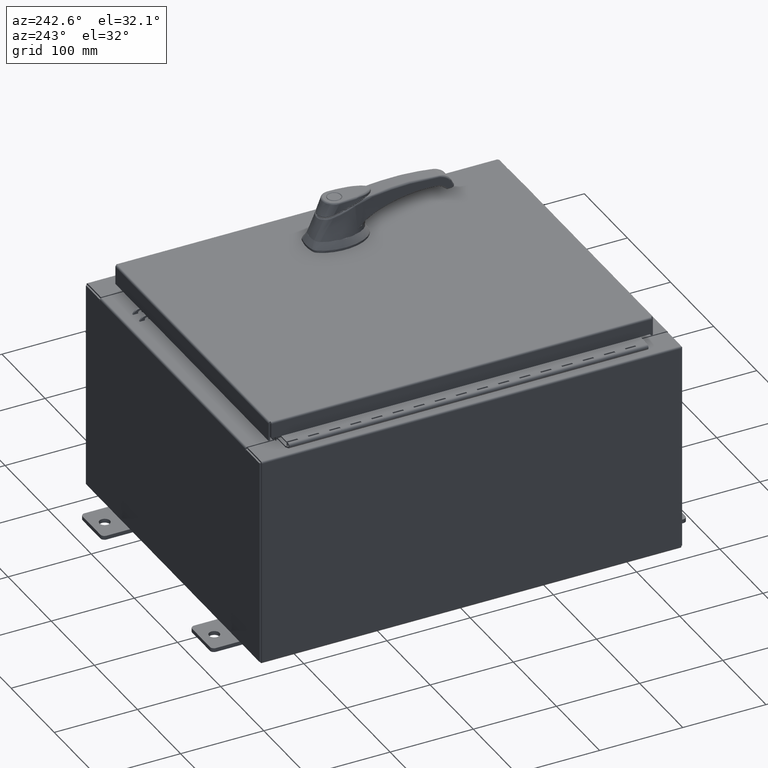
[diagram: clean part render]
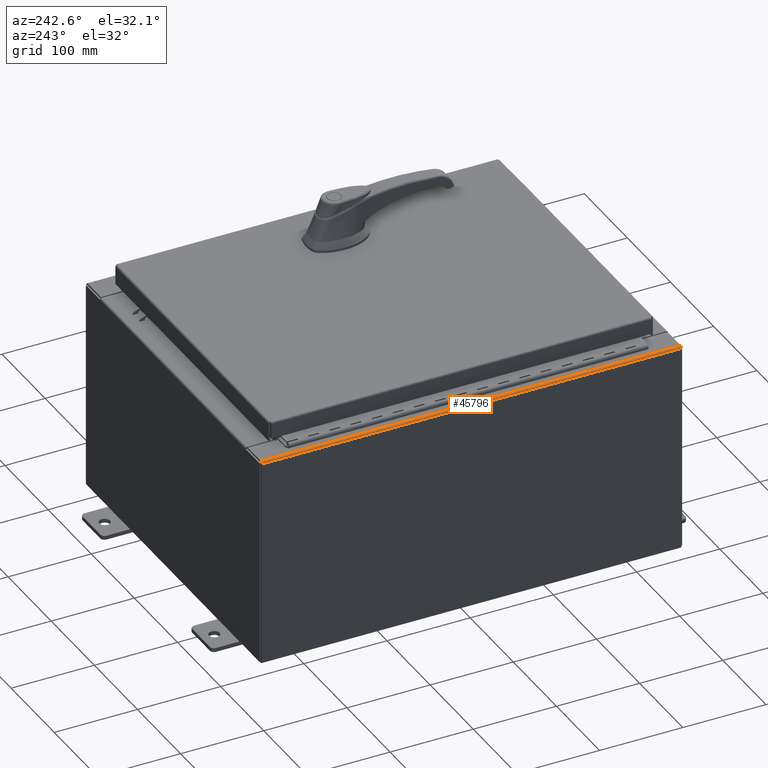
[diagram: same view with one face highlighted and labeled with its STEP entity id]
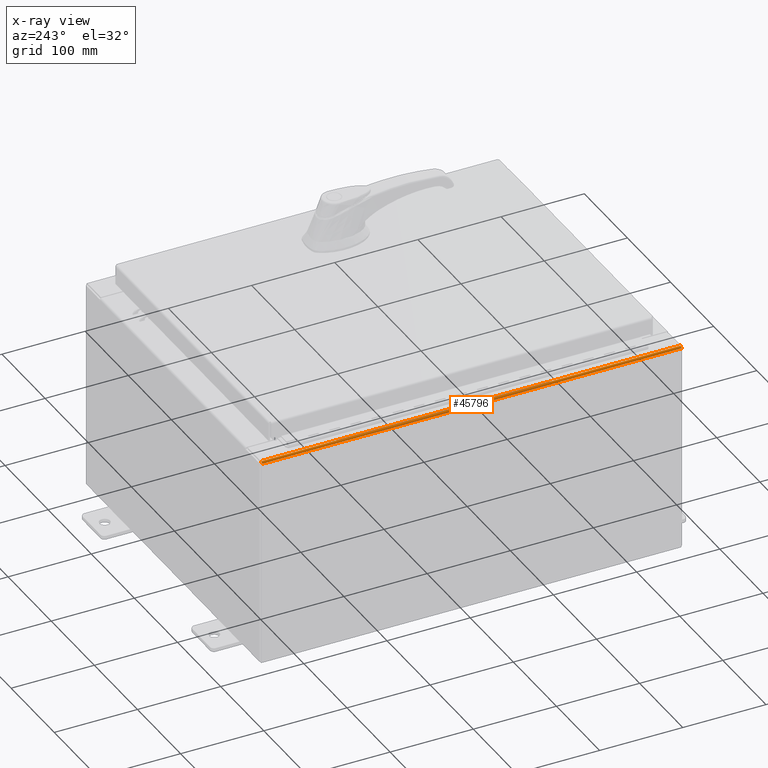
[diagram: x-ray of the same camera — body ghosted, the highlighted face saturated]
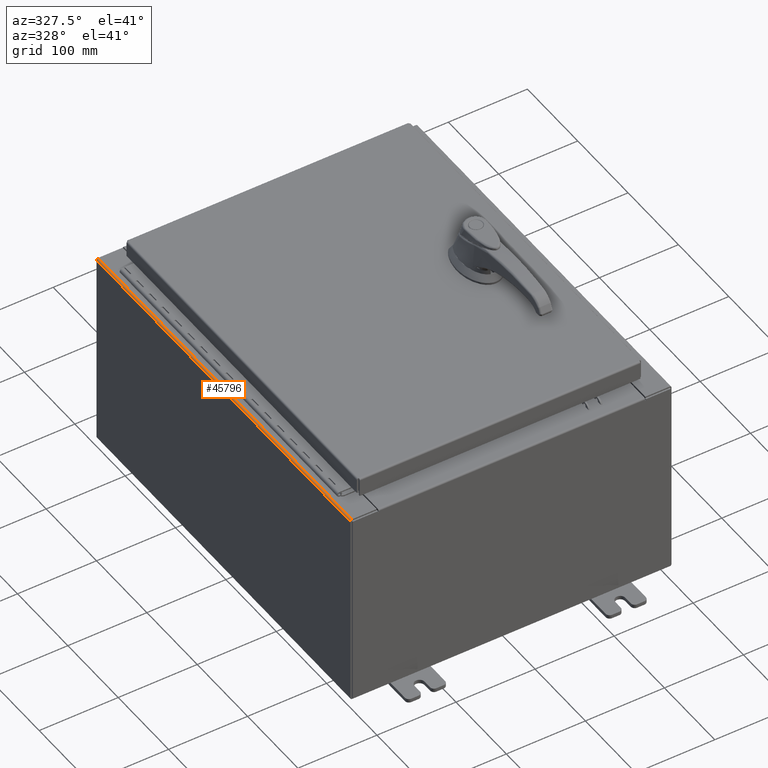
[diagram: same view with one face highlighted and labeled with its STEP entity id]
A machine part, auxiliary view. The second image highlights one B-rep face of the part: STEP entity #45796.
The next image is the same camera in x-ray: the body ghosted, the highlighted face saturated — about 0% of this face is hidden behind the body in this view.
A second angle (auxiliary view) of the same face is appended — the face is thin or edge-on in the first view.
In plain terms, the highlighted cylindrical surface (edge-blend (fillet) strip) has radius 2.2276 mm, axis along (-0, -1, -0).
Its self-contained STEP definition (entity closure, byte-faithful):
#2470 = VERTEX_POINT ( 'NONE', #110738 ) ;
#3644 = DIRECTION ( 'NONE',  ( 0.0000000000000000000, 0.0000000000000000000, -1.000000000000000000 ) ) ;
#4811 = ORIENTED_EDGE ( 'NONE', *, *, #41475, .F. ) ;
#6146 = CARTESIAN_POINT ( 'NONE',  ( -8.000000000000032000, -9.925300000000001800, 9.837599999999998300 ) ) ;
#7264 = EDGE_CURVE ( 'NONE', #78642, #8963, #67830, .T. ) ;
#8963 = VERTEX_POINT ( 'NONE', #20197 ) ;
#14263 = CARTESIAN_POINT ( 'NONE',  ( -7.912300000000032100, -9.925300000000000000, 9.837599999999998300 ) ) ;
#18008 = VECTOR ( 'NONE', #49030, 39.37007874015748100 ) ;
#20197 = CARTESIAN_POINT ( 'NONE',  ( -8.000000000000032000, -9.925300000000000000, 9.837599999999998300 ) ) ;
#22874 = DIRECTION ( 'NONE',  ( 0.0000000000000000000, 0.0000000000000000000, -1.000000000000000000 ) ) ;
#23519 = DIRECTION ( 'NONE',  ( -0.0000000000000000000, -1.000000000000000000, -0.0000000000000000000 ) ) ;
#27289 = AXIS2_PLACEMENT_3D ( 'NONE', #14263, #73889, #22874 ) ;
#36140 = CARTESIAN_POINT ( 'NONE',  ( -7.912300000000032100, 9.925299999999998200, 9.925299999999998200 ) ) ;
#36582 = AXIS2_PLACEMENT_3D ( 'NONE', #49203, #23519, #100309 ) ;
#37783 = LINE ( 'NONE', #36140, #80445 ) ;
#40511 = ORIENTED_EDGE ( 'NONE', *, *, #82087, .T. ) ;
#41205 = EDGE_LOOP ( 'NONE', ( #70652, #67563, #40511, #4811 ) ) ;
#41475 = EDGE_CURVE ( 'NONE', #2470, #75298, #62409, .T. ) ;
#44703 = DIRECTION ( 'NONE',  ( -0.0000000000000000000, 1.000000000000000000, -1.100963394019027600E-016 ) ) ;
#45796 = ADVANCED_FACE ( 'NONE', ( #56776 ), #99507, .T. ) ;
#49030 = DIRECTION ( 'NONE',  ( 0.0000000000000000000, 1.000000000000000000, 0.0000000000000000000 ) ) ;
#49203 = CARTESIAN_POINT ( 'NONE',  ( -7.912300000000032100, -9.925300000000001800, 9.837599999999998300 ) ) ;
#54760 = DIRECTION ( 'NONE',  ( 0.0000000000000000000, 1.000000000000000000, 0.0000000000000000000 ) ) ;
#56776 = FACE_OUTER_BOUND ( 'NONE', #41205, .T. ) ;
#62409 = CIRCLE ( 'NONE', #110092, 0.08769999999999918100 ) ;
#63290 = LINE ( 'NONE', #6146, #18008 ) ;
#67563 = ORIENTED_EDGE ( 'NONE', *, *, #7264, .F. ) ;
#67830 = CIRCLE ( 'NONE', #27289, 0.08769999999999918100 ) ;
#68661 = EDGE_CURVE ( 'NONE', #8963, #2470, #63290, .T. ) ;
#70652 = ORIENTED_EDGE ( 'NONE', *, *, #68661, .F. ) ;
#73889 = DIRECTION ( 'NONE',  ( -0.0000000000000000000, -1.000000000000000000, -0.0000000000000000000 ) ) ;
#75298 = VERTEX_POINT ( 'NONE', #100712 ) ;
#78642 = VERTEX_POINT ( 'NONE', #104165 ) ;
#80445 = VECTOR ( 'NONE', #44703, 39.37007874015748100 ) ;
#82087 = EDGE_CURVE ( 'NONE', #78642, #75298, #37783, .T. ) ;
#99507 = CYLINDRICAL_SURFACE ( 'NONE', #36582, 0.08769999999999918100 ) ;
#100309 = DIRECTION ( 'NONE',  ( 0.0000000000000000000, 0.0000000000000000000, 1.000000000000000000 ) ) ;
#100712 = CARTESIAN_POINT ( 'NONE',  ( -7.912300000000032100, 9.925299999999998200, 9.925299999999998200 ) ) ;
#104165 = CARTESIAN_POINT ( 'NONE',  ( -7.912300000000032100, -9.925300000000001800, 9.925300000000000000 ) ) ;
#105911 = CARTESIAN_POINT ( 'NONE',  ( -7.912300000000032100, 9.925299999999998200, 9.837599999999998300 ) ) ;
#110092 = AXIS2_PLACEMENT_3D ( 'NONE', #105911, #54760, #3644 ) ;
#110738 = CARTESIAN_POINT ( 'NONE',  ( -8.000000000000032000, 9.925299999999998200, 9.837599999999998300 ) ) ;